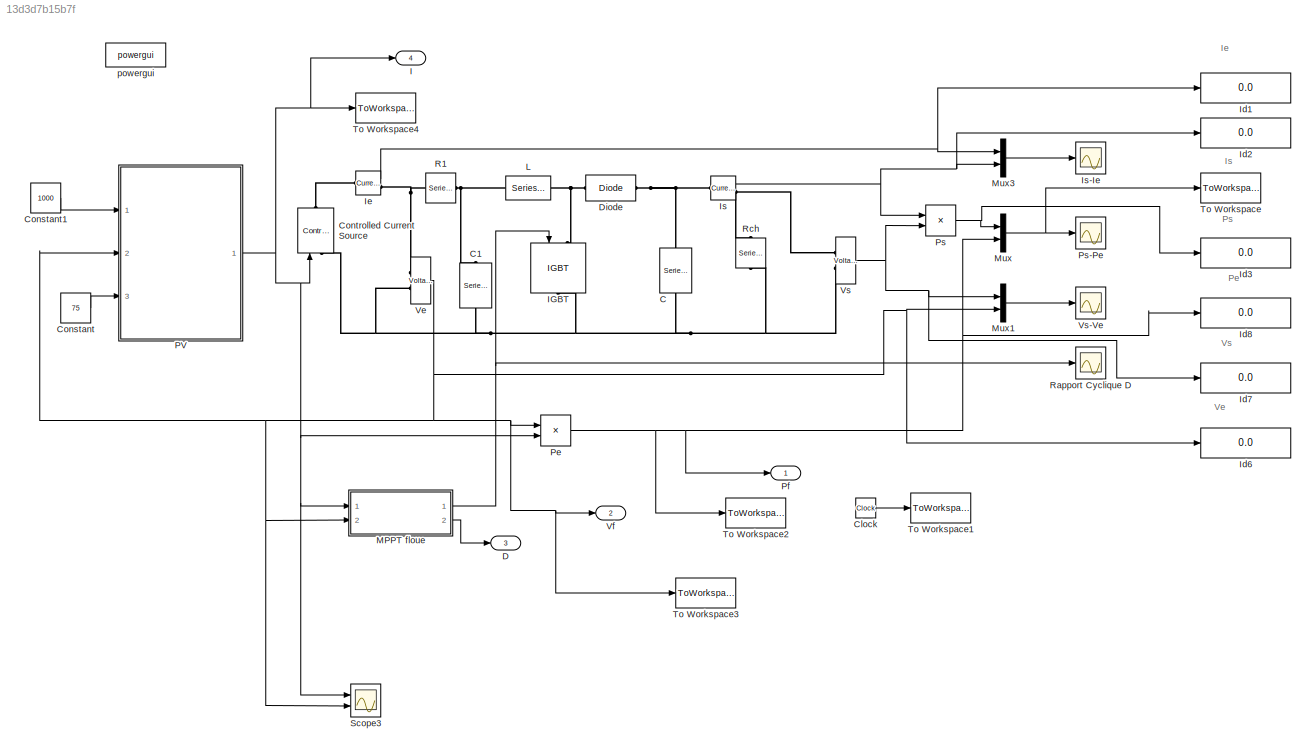
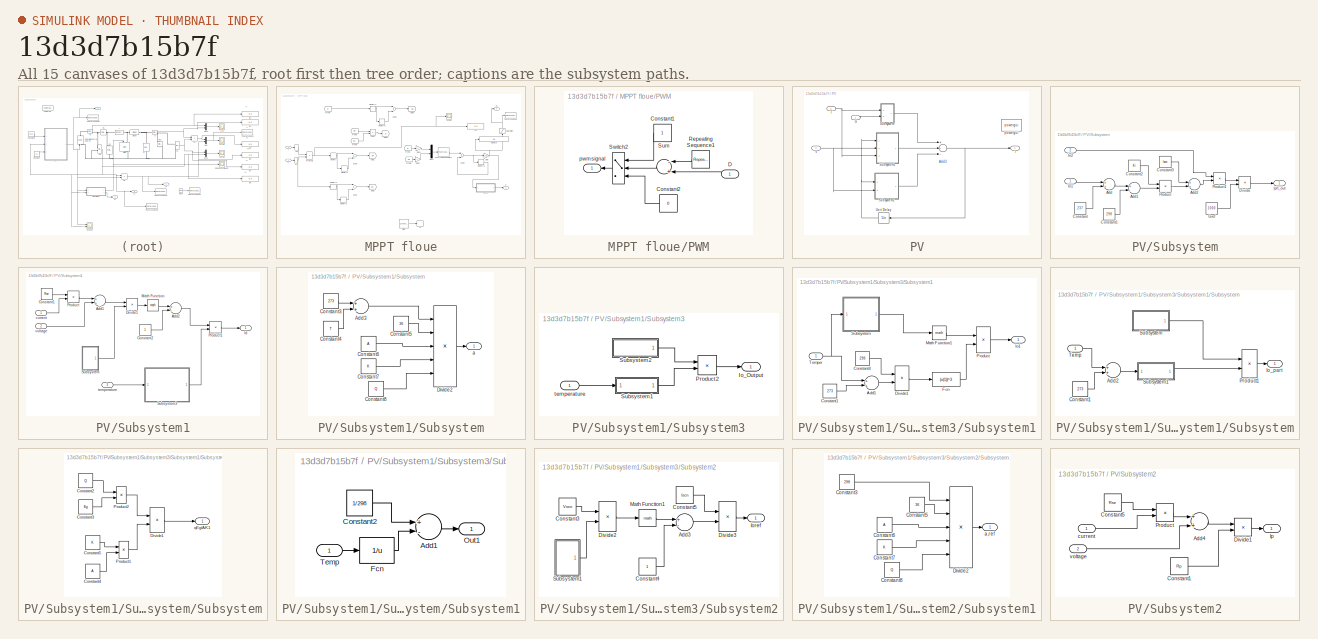
[diagram: thumbnail index - all 15 canvases of the model, root first then tree order]
MODEL slx_13d3d7b15b7f
KIND model
CONFIG AbsTol = auto
CONFIG FixedStep = auto
CONFIG MaxStep = auto
CONFIG MinStep = auto
CONFIG RelTol = 1e-3
CONFIG SampleTimeConstraint = Unconstrained
CONFIG Solver = VariableStepAuto
CONFIG SolverMode = Auto
CONFIG SolverName = VariableStepAuto
CONFIG StartTime = 0.0
CONFIG StopTime = 40
BLOCK [Reference] C  REF=powerlib/Elements/Series RLC Branch
  Ports = [0, 0, 0, 0, 0, 1, 1]
  SourceBlock = powerlib/Elements/Series RLC Branch
  SourceType = Series RLC Branch
BLOCK [Reference] C1  REF=powerlib/Elements/Series RLC Branch
  Ports = [0, 0, 0, 0, 0, 1, 1]
  SourceBlock = powerlib/Elements/Series RLC Branch
  SourceType = Series RLC Branch
BLOCK [Clock] Clock
BLOCK [Constant] Constant
  Value = 75
BLOCK [Constant] Constant1
  Value = 1000
BLOCK [Reference] Controlled Current Source  REF=powerlib/Electrical
Sources/Controlled Current Source
  Ports = [1, 0, 0, 0, 0, 1, 1]
  SourceBlock = powerlib/Electrical\nSources/Controlled Current Source
  SourceType = Controlled Current Source
BLOCK [Outport] D
  IconDisplay = Port number
  Port = 3
BLOCK [Reference] Diode  REF=powerlib/Power
Electronics/Diode
  AttributesFormatString = \n
  Ports = [0, 0, 0, 0, 0, 1, 1]
  SourceBlock = powerlib/Power\nElectronics/Diode
  SourceType = Diode
BLOCK [Outport] I  
  IconDisplay = Port number
  Port = 4
BLOCK [Reference] IGBT  REF=powerlib/Power
Electronics/IGBT
  Ports = [1, 0, 0, 0, 0, 1, 1]
  SourceBlock = powerlib/Power\nElectronics/IGBT
  SourceType = IGBT
BLOCK [Display] Id1
  Decimation = 1
  Ports = [1]
BLOCK [Display] Id2
  Decimation = 1
  Ports = [1]
BLOCK [Display] Id3
  Decimation = 1
  Ports = [1]
BLOCK [Display] Id6
  Decimation = 1
  Ports = [1]
BLOCK [Display] Id7
  Decimation = 1
  Ports = [1]
BLOCK [Display] Id8
  Decimation = 1
  Ports = [1]
BLOCK [Reference] Ie  REF=powerlib/Measurements/Current Measurement
  AttributesFormatString = \n
  Ports = [0, 1, 0, 0, 0, 1, 1]
  SourceBlock = powerlib/Measurements/Current Measurement
  SourceType = Current Measurement
  Tag = PoWeRsYsTeMmEaSuReMeNt
BLOCK [Reference] Is  REF=powerlib/Measurements/Current Measurement
  AttributesFormatString = \n
  Ports = [0, 1, 0, 0, 0, 1, 1]
  SourceBlock = powerlib/Measurements/Current Measurement
  SourceType = Current Measurement
  Tag = PoWeRsYsTeMmEaSuReMeNt
BLOCK [Scope] Is-Ie
  Ports = [1]
  ScopeSpecificationString = Simulink.scopes.TimeScopeBlockCfg('CurrentConfiguration', extmgr.ConfigurationSet(extmgr.Configuration('Core','General UI',true,'FigureColor',[1 1 1]),extmgr.Configuration('Core','Source UI',true),extmgr.Configuration('Sources','WiredSimulink',true,'DataLoggingVariableName','ScopeData2'),extmgr.Configuration('Visuals','Time Domain',true,'SerializedDisplays',{struct('MinYLimReal','-1491.4334','MaxY...<+1714ch>
BLOCK [Reference] L  REF=powerlib/Elements/Series RLC Branch
  Ports = [0, 0, 0, 0, 0, 1, 1]
  SourceBlock = powerlib/Elements/Series RLC Branch
  SourceType = Series RLC Branch
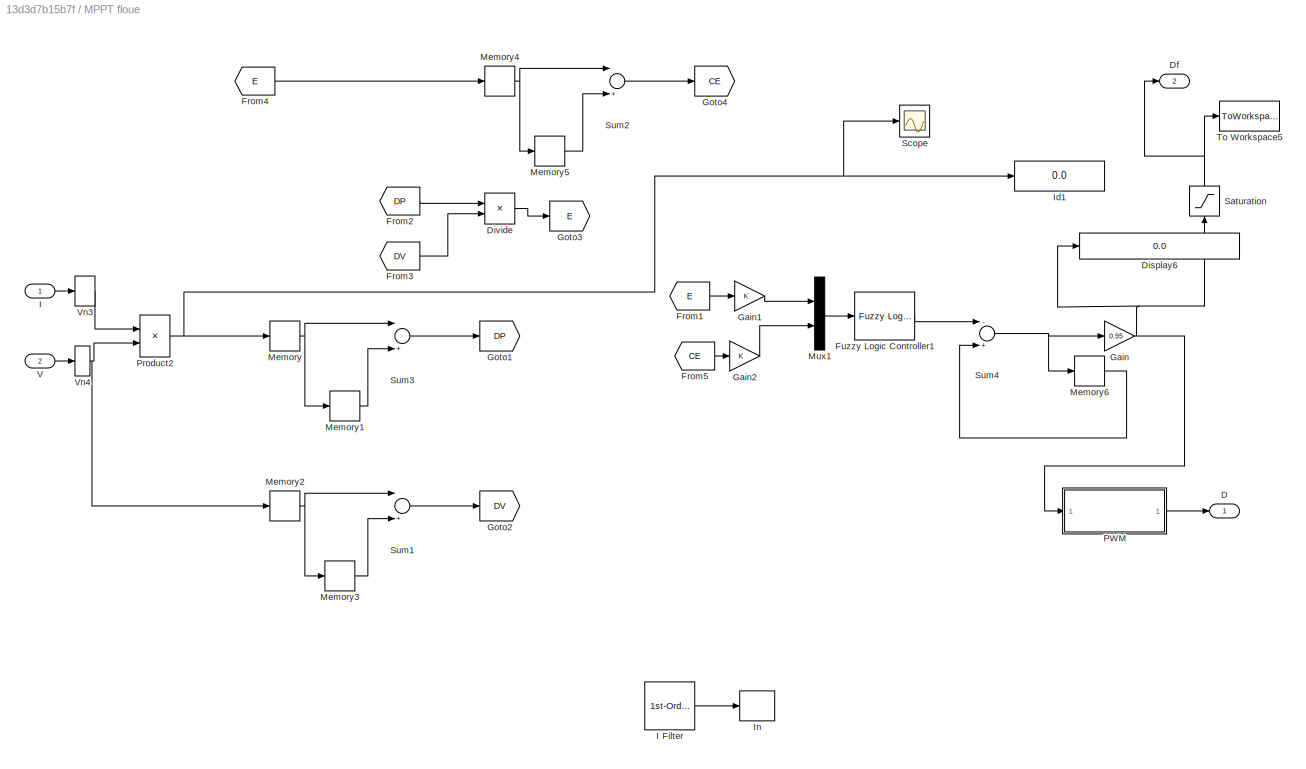
BLOCK [SubSystem] MPPT floue
  Ports = [2, 2]
  RequestExecContextInheritance = off
  Variant = off
BLOCK [Outport] MPPT floue/D
  IconDisplay = Port number
BLOCK [Outport] MPPT floue/Df
  IconDisplay = Port number
  Port = 2
BLOCK [Display] MPPT floue/Display6
  Decimation = 1
  Format = long
  Ports = [1]
BLOCK [Product] MPPT floue/Divide
  InputSameDT = off
  Inputs = */
  OutDataTypeStr = Inherit: Inherit via internal rule
  Ports = [2, 1]
  RndMeth = Floor
  SaturateOnIntegerOverflow = off
BLOCK [From] MPPT floue/From1
  GotoTag = E
BLOCK [From] MPPT floue/From2
  GotoTag = DP
BLOCK [From] MPPT floue/From3
  GotoTag = DV
BLOCK [From] MPPT floue/From4
  GotoTag = E
BLOCK [From] MPPT floue/From5
  GotoTag = CE
BLOCK [Reference] MPPT floue/Fuzzy Logic Controller1  REF=fuzblock/Fuzzy Logic   (lib defined in mdl_858b3b3e7478)
Controller
  Ports = [1, 1]
  SourceBlock = fuzblock/Fuzzy Logic \nController
  SourceType = FIS
BLOCK [Gain] MPPT floue/Gain
  Gain = 0.95
  OutDataTypeStr = Inherit: Inherit via internal rule
  ParamDataTypeStr = Inherit: Inherit via internal rule
  SaturateOnIntegerOverflow = off
BLOCK [Gain] MPPT floue/Gain1
  OutDataTypeStr = Inherit: Inherit via internal rule
  ParamDataTypeStr = Inherit: Inherit via internal rule
  SaturateOnIntegerOverflow = off
BLOCK [Gain] MPPT floue/Gain2
  OutDataTypeStr = Inherit: Inherit via internal rule
  ParamDataTypeStr = Inherit: Inherit via internal rule
  SaturateOnIntegerOverflow = off
BLOCK [Goto] MPPT floue/Goto1
  GotoTag = DP
BLOCK [Goto] MPPT floue/Goto2
  GotoTag = DV
BLOCK [Goto] MPPT floue/Goto3
  GotoTag = E
BLOCK [Goto] MPPT floue/Goto4
  GotoTag = CE
BLOCK [Inport] MPPT floue/I
  IconDisplay = Port number
BLOCK [Reference] MPPT floue/I Filter  REF=powerlib_extras/Control 
Blocks/1st-Order 
Filter
  Ports = [1, 1]
  SourceBlock = powerlib_extras/Control \nBlocks/1st-Order \nFilter
  SourceType = First-Order Filter
BLOCK [Display] MPPT floue/Id1
  Decimation = 1
  Ports = [1]
BLOCK [ZeroOrderHold] MPPT floue/In
  SampleTime = 4e-4
BLOCK [Memory] MPPT floue/Memory
BLOCK [Memory] MPPT floue/Memory1
BLOCK [Memory] MPPT floue/Memory2
BLOCK [Memory] MPPT floue/Memory3
BLOCK [Memory] MPPT floue/Memory4
BLOCK [Memory] MPPT floue/Memory5
BLOCK [Memory] MPPT floue/Memory6
BLOCK [Mux] MPPT floue/Mux1
  DisplayOption = bar
  Inputs = 2
  Ports = [2, 1]
BLOCK [SubSystem] MPPT floue/PWM
  Ports = [1, 1]
  RequestExecContextInheritance = off
  Variant = off
BLOCK [Constant] MPPT floue/PWM/Constant1
  SampleTime = -1
BLOCK [Constant] MPPT floue/PWM/Constant2
  SampleTime = -1
  Value = 0
BLOCK [Inport] MPPT floue/PWM/D
  IconDisplay = Port number
BLOCK [Reference] MPPT floue/PWM/Repeating Sequence1  REF=simulink/Sources/Repeating
Sequence
  Ports = [0, 1]
  SourceBlock = simulink/Sources/Repeating\nSequence
  SourceType = Repeating table
BLOCK [Sum] MPPT floue/PWM/Sum
  InputSameDT = off
  Inputs = -+
  OutDataTypeStr = Inherit: Inherit via internal rule
  Ports = [2, 1]
BLOCK [Switch] MPPT floue/PWM/Switch2
  InputSameDT = off
  SaturateOnIntegerOverflow = off
BLOCK [Outport] MPPT floue/PWM/pwm signal
  IconDisplay = Port number
BLOCK [Product] MPPT floue/Product2
  InputSameDT = off
  OutDataTypeStr = Inherit: Inherit via internal rule
  Ports = [2, 1]
  RndMeth = Floor
  SaturateOnIntegerOverflow = off
BLOCK [Saturate] MPPT floue/Saturation
  InputPortMap = u0
  LowerLimit = 0
  Ports = [1, 1]
  UpperLimit = 1
BLOCK [Scope] MPPT floue/Scope
  Ports = [1]
  ScopeSpecificationString = Simulink.scopes.TimeScopeBlockCfg('CurrentConfiguration', extmgr.ConfigurationSet(extmgr.Configuration('Core','General UI',true),extmgr.Configuration('Core','Source UI',true),extmgr.Configuration('Sources','WiredSimulink',true,'DataLoggingVariableName','ScopeData7','DataLoggingSaveFormat','StructureWithTime','DataLoggingLimitDataPoints',true,'DataLoggingDecimation','1','DataLoggingDecimateData',tr...<+1660ch>
BLOCK [Sum] MPPT floue/Sum1
  InputSameDT = off
  Inputs = |+-
  OutDataTypeStr = Inherit: Inherit via internal rule
  Ports = [2, 1]
  SaturateOnIntegerOverflow = off
BLOCK [Sum] MPPT floue/Sum2
  InputSameDT = off
  Inputs = |+-
  OutDataTypeStr = Inherit: Inherit via internal rule
  Ports = [2, 1]
  SaturateOnIntegerOverflow = off
BLOCK [Sum] MPPT floue/Sum3
  InputSameDT = off
  Inputs = |+-
  OutDataTypeStr = Inherit: Inherit via internal rule
  Ports = [2, 1]
  SaturateOnIntegerOverflow = off
BLOCK [Sum] MPPT floue/Sum4
  InputSameDT = off
  Inputs = -+
  OutDataTypeStr = Inherit: Inherit via internal rule
  Ports = [2, 1]
  SaturateOnIntegerOverflow = off
BLOCK [ToWorkspace] MPPT floue/To Workspace5
  MaxDataPoints = inf
  Ports = [1]
  SampleTime = -1
  VariableName = Df
BLOCK [Inport] MPPT floue/V
  IconDisplay = Port number
  Port = 2
BLOCK [ZeroOrderHold] MPPT floue/Vn3
  SampleTime = 0.01/2
BLOCK [ZeroOrderHold] MPPT floue/Vn4
  SampleTime = 0.01/2
BLOCK [Mux] Mux
  DisplayOption = bar
  Inputs = 2
  Ports = [2, 1]
BLOCK [Mux] Mux1
  DisplayOption = bar
  Inputs = 2
  Ports = [2, 1]
BLOCK [Mux] Mux3
  DisplayOption = bar
  Inputs = 2
  Ports = [2, 1]
BLOCK [SubSystem] PV
  Ports = [3, 1]
  RequestExecContextInheritance = off
  Variant = off
BLOCK [Sum] PV/Add3
  InputSameDT = off
  Inputs = +--
  OutDataTypeStr = Inherit: Inherit via internal rule
  Ports = [3, 1]
  SaturateOnIntegerOverflow = off
BLOCK [Inport] PV/G 
  IconDisplay = Port number
BLOCK [Outport] PV/I 
  IconDisplay = Port number
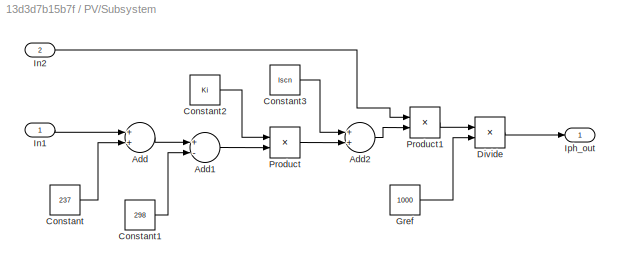
BLOCK [SubSystem] PV/Subsystem
  Ports = [2, 1]
  RequestExecContextInheritance = off
  Variant = off
BLOCK [Sum] PV/Subsystem/Add
  InputSameDT = off
  OutDataTypeStr = Inherit: Inherit via internal rule
  Ports = [2, 1]
  SaturateOnIntegerOverflow = off
BLOCK [Sum] PV/Subsystem/Add1
  InputSameDT = off
  Inputs = +-
  OutDataTypeStr = Inherit: Inherit via internal rule
  Ports = [2, 1]
  SaturateOnIntegerOverflow = off
BLOCK [Sum] PV/Subsystem/Add2
  InputSameDT = off
  OutDataTypeStr = Inherit: Inherit via internal rule
  Ports = [2, 1]
  SaturateOnIntegerOverflow = off
BLOCK [Constant] PV/Subsystem/Constant
  Value = 237
BLOCK [Constant] PV/Subsystem/Constant1
  Value = 298
BLOCK [Constant] PV/Subsystem/Constant2
  Value = Ki
BLOCK [Constant] PV/Subsystem/Constant3
  Value = Iscn
BLOCK [Product] PV/Subsystem/Divide
  InputSameDT = off
  Inputs = */
  OutDataTypeStr = Inherit: Inherit via internal rule
  Ports = [2, 1]
  RndMeth = Floor
  SaturateOnIntegerOverflow = off
BLOCK [Constant] PV/Subsystem/Gref 
  Value = 1000
BLOCK [Inport] PV/Subsystem/In1
  IconDisplay = Port number
BLOCK [Inport] PV/Subsystem/In2
  IconDisplay = Port number
  Port = 2
BLOCK [Outport] PV/Subsystem/Iph_out
  IconDisplay = Port number
BLOCK [Product] PV/Subsystem/Product
  InputSameDT = off
  OutDataTypeStr = Inherit: Inherit via internal rule
  Ports = [2, 1]
  RndMeth = Floor
  SaturateOnIntegerOverflow = off
BLOCK [Product] PV/Subsystem/Product1
  InputSameDT = off
  OutDataTypeStr = Inherit: Inherit via internal rule
  Ports = [2, 1]
  RndMeth = Floor
  SaturateOnIntegerOverflow = off
BLOCK [SubSystem] PV/Subsystem1
  Ports = [3, 1]
  RequestExecContextInheritance = off
  Variant = off
BLOCK [Sum] PV/Subsystem1/Add1
  InputSameDT = off
  OutDataTypeStr = Inherit: Inherit via internal rule
  Ports = [2, 1]
  SaturateOnIntegerOverflow = off
BLOCK [Sum] PV/Subsystem1/Add2
  InputSameDT = off
  Inputs = +-
  OutDataTypeStr = Inherit: Inherit via internal rule
  Ports = [2, 1]
  SaturateOnIntegerOverflow = off
BLOCK [Constant] PV/Subsystem1/Constant1
  Value = Rse
BLOCK [Constant] PV/Subsystem1/Constant2
BLOCK [Product] PV/Subsystem1/Divide1
  InputSameDT = off
  Inputs = */
  OutDataTypeStr = Inherit: Inherit via internal rule
  Ports = [2, 1]
  RndMeth = Floor
  SaturateOnIntegerOverflow = off
BLOCK [Outport] PV/Subsystem1/Id
  IconDisplay = Port number
BLOCK [Math] PV/Subsystem1/Math Function
  Ports = [1, 1]
BLOCK [Product] PV/Subsystem1/Product
  InputSameDT = off
  OutDataTypeStr = Inherit: Inherit via internal rule
  Ports = [2, 1]
  RndMeth = Floor
  SaturateOnIntegerOverflow = off
BLOCK [Product] PV/Subsystem1/Product1
  InputSameDT = off
  OutDataTypeStr = Inherit: Inherit via internal rule
  Ports = [2, 1]
  RndMeth = Floor
  SaturateOnIntegerOverflow = off
BLOCK [SubSystem] PV/Subsystem1/Subsystem
  Ports = [0, 1]
  RequestExecContextInheritance = off
  Variant = off
BLOCK [Sum] PV/Subsystem1/Subsystem/Add3
  InputSameDT = off
  OutDataTypeStr = Inherit: Inherit via internal rule
  Ports = [2, 1]
  SaturateOnIntegerOverflow = off
BLOCK [Constant] PV/Subsystem1/Subsystem/Constant3
  Value = 273
BLOCK [Constant] PV/Subsystem1/Subsystem/Constant4
  Value = T
BLOCK [Constant] PV/Subsystem1/Subsystem/Constant5
  Value = 36
BLOCK [Constant] PV/Subsystem1/Subsystem/Constant6
  Value = A
BLOCK [Constant] PV/Subsystem1/Subsystem/Constant7
  Value = K
BLOCK [Constant] PV/Subsystem1/Subsystem/Constant8
  Value = Q
BLOCK [Product] PV/Subsystem1/Subsystem/Divide2
  InputSameDT = off
  Inputs = ****/
  OutDataTypeStr = Inherit: Inherit via internal rule
  Ports = [5, 1]
  RndMeth = Floor
  SaturateOnIntegerOverflow = off
BLOCK [Outport] PV/Subsystem1/Subsystem/a
  IconDisplay = Port number
BLOCK [SubSystem] PV/Subsystem1/Subsystem3
  Ports = [1, 1]
  RequestExecContextInheritance = off
  Variant = off
BLOCK [Outport] PV/Subsystem1/Subsystem3/Io_Output
  IconDisplay = Port number
BLOCK [Product] PV/Subsystem1/Subsystem3/Product2
  InputSameDT = off
  OutDataTypeStr = Inherit: Inherit via internal rule
  Ports = [2, 1]
  RndMeth = Floor
  SaturateOnIntegerOverflow = off
BLOCK [SubSystem] PV/Subsystem1/Subsystem3/Subsystem1
  Ports = [1, 1]
  RequestExecContextInheritance = off
  Variant = off
BLOCK [Sum] PV/Subsystem1/Subsystem3/Subsystem1/Add1
  InputSameDT = off
  OutDataTypeStr = Inherit: Inherit via internal rule
  Ports = [2, 1]
  SaturateOnIntegerOverflow = off
BLOCK [Constant] PV/Subsystem1/Subsystem3/Subsystem1/Constant1
  Value = 273
BLOCK [Constant] PV/Subsystem1/Subsystem3/Subsystem1/Constant4
  Value = 298
BLOCK [Product] PV/Subsystem1/Subsystem3/Subsystem1/Divide1
  InputSameDT = off
  Inputs = */
  OutDataTypeStr = Inherit: Inherit via internal rule
  Ports = [2, 1]
  RndMeth = Floor
  SaturateOnIntegerOverflow = off
BLOCK [Fcn] PV/Subsystem1/Subsystem3/Subsystem1/Fcn
  Expr = (u(1))^3
BLOCK [Outport] PV/Subsystem1/Subsystem3/Subsystem1/Io1
  IconDisplay = Port number
BLOCK [Math] PV/Subsystem1/Subsystem3/Subsystem1/Math Function1
  Ports = [1, 1]
BLOCK [Product] PV/Subsystem1/Subsystem3/Subsystem1/Product
  InputSameDT = off
  OutDataTypeStr = Inherit: Inherit via internal rule
  Ports = [2, 1]
  RndMeth = Floor
  SaturateOnIntegerOverflow = off
BLOCK [SubSystem] PV/Subsystem1/Subsystem3/Subsystem1/Subsystem
  Ports = [1, 1]
  RequestExecContextInheritance = off
  Variant = off
BLOCK [Sum] PV/Subsystem1/Subsystem3/Subsystem1/Subsystem/Add2
  InputSameDT = off
  OutDataTypeStr = Inherit: Inherit via internal rule
  Ports = [2, 1]
  SaturateOnIntegerOverflow = off
BLOCK [Constant] PV/Subsystem1/Subsystem3/Subsystem1/Subsystem/Constant1
  Value = 273
BLOCK [Outport] PV/Subsystem1/Subsystem3/Subsystem1/Subsystem/Io_part
  IconDisplay = Port number
BLOCK [Product] PV/Subsystem1/Subsystem3/Subsystem1/Subsystem/Product1
  InputSameDT = off
  OutDataTypeStr = Inherit: Inherit via internal rule
  Ports = [2, 1]
  RndMeth = Floor
  SaturateOnIntegerOverflow = off
BLOCK [SubSystem] PV/Subsystem1/Subsystem3/Subsystem1/Subsystem/Subsystem
  Ports = [0, 1]
  RequestExecContextInheritance = off
  Variant = off
BLOCK [Constant] PV/Subsystem1/Subsystem3/Subsystem1/Subsystem/Subsystem/Constant2
  Value = Q
BLOCK [Constant] PV/Subsystem1/Subsystem3/Subsystem1/Subsystem/Subsystem/Constant3
  Value = Eg
BLOCK [Constant] PV/Subsystem1/Subsystem3/Subsystem1/Subsystem/Subsystem/Constant4
  Value = A
BLOCK [Constant] PV/Subsystem1/Subsystem3/Subsystem1/Subsystem/Subsystem/Constant5
  Value = K
BLOCK [Product] PV/Subsystem1/Subsystem3/Subsystem1/Subsystem/Subsystem/Divide1
  InputSameDT = off
  Inputs = */
  OutDataTypeStr = Inherit: Inherit via internal rule
  Ports = [2, 1]
  RndMeth = Floor
  SaturateOnIntegerOverflow = off
BLOCK [Product] PV/Subsystem1/Subsystem3/Subsystem1/Subsystem/Subsystem/Product1
  InputSameDT = off
  OutDataTypeStr = Inherit: Inherit via internal rule
  Ports = [2, 1]
  RndMeth = Floor
  SaturateOnIntegerOverflow = off
BLOCK [Product] PV/Subsystem1/Subsystem3/Subsystem1/Subsystem/Subsystem/Product2
  InputSameDT = off
  OutDataTypeStr = Inherit: Inherit via internal rule
  Ports = [2, 1]
  RndMeth = Floor
  SaturateOnIntegerOverflow = off
BLOCK [Outport] PV/Subsystem1/Subsystem3/Subsystem1/Subsystem/Subsystem/qEg//AK1
  IconDisplay = Port number
BLOCK [SubSystem] PV/Subsystem1/Subsystem3/Subsystem1/Subsystem/Subsystem1
  Ports = [1, 1]
  RequestExecContextInheritance = off
  Variant = off
BLOCK [Sum] PV/Subsystem1/Subsystem3/Subsystem1/Subsystem/Subsystem1/Add1
  InputSameDT = off
  Inputs = +-
  OutDataTypeStr = Inherit: Inherit via internal rule
  Ports = [2, 1]
  SaturateOnIntegerOverflow = off
BLOCK [Constant] PV/Subsystem1/Subsystem3/Subsystem1/Subsystem/Subsystem1/Constant2
  Value = 1/298
BLOCK [Fcn] PV/Subsystem1/Subsystem3/Subsystem1/Subsystem/Subsystem1/Fcn
  Expr = 1/u
BLOCK [Outport] PV/Subsystem1/Subsystem3/Subsystem1/Subsystem/Subsystem1/Out1
  IconDisplay = Port number
BLOCK [Inport] PV/Subsystem1/Subsystem3/Subsystem1/Subsystem/Subsystem1/Temp
  IconDisplay = Port number
BLOCK [Inport] PV/Subsystem1/Subsystem3/Subsystem1/Subsystem/Temp
  IconDisplay = Port number
BLOCK [Inport] PV/Subsystem1/Subsystem3/Subsystem1/Temper
  IconDisplay = Port number
BLOCK [SubSystem] PV/Subsystem1/Subsystem3/Subsystem2
  Ports = [0, 1]
  RequestExecContextInheritance = off
  Variant = off
BLOCK [Sum] PV/Subsystem1/Subsystem3/Subsystem2/Add3
  InputSameDT = off
  Inputs = +-
  OutDataTypeStr = Inherit: Inherit via internal rule
  Ports = [2, 1]
  SaturateOnIntegerOverflow = off
BLOCK [Constant] PV/Subsystem1/Subsystem3/Subsystem2/Constant3
  Value = Vocn
BLOCK [Constant] PV/Subsystem1/Subsystem3/Subsystem2/Constant4
BLOCK [Constant] PV/Subsystem1/Subsystem3/Subsystem2/Constant5
  Value = Iscn
BLOCK [Product] PV/Subsystem1/Subsystem3/Subsystem2/Divide2
  InputSameDT = off
  Inputs = */
  OutDataTypeStr = Inherit: Inherit via internal rule
  Ports = [2, 1]
  RndMeth = Floor
  SaturateOnIntegerOverflow = off
BLOCK [Product] PV/Subsystem1/Subsystem3/Subsystem2/Divide3
  InputSameDT = off
  Inputs = */
  OutDataTypeStr = Inherit: Inherit via internal rule
  Ports = [2, 1]
  RndMeth = Floor
  SaturateOnIntegerOverflow = off
BLOCK [Outport] PV/Subsystem1/Subsystem3/Subsystem2/Ioref
  IconDisplay = Port number
BLOCK [Math] PV/Subsystem1/Subsystem3/Subsystem2/Math Function1
  Ports = [1, 1]
BLOCK [SubSystem] PV/Subsystem1/Subsystem3/Subsystem2/Subsystem1
  Ports = [0, 1]
  RequestExecContextInheritance = off
  Variant = off
BLOCK [Constant] PV/Subsystem1/Subsystem3/Subsystem2/Subsystem1/Constant3
  Value = 298
BLOCK [Constant] PV/Subsystem1/Subsystem3/Subsystem2/Subsystem1/Constant5
  Value = 36
BLOCK [Constant] PV/Subsystem1/Subsystem3/Subsystem2/Subsystem1/Constant6
  Value = A
BLOCK [Constant] PV/Subsystem1/Subsystem3/Subsystem2/Subsystem1/Constant7
  Value = K
BLOCK [Constant] PV/Subsystem1/Subsystem3/Subsystem2/Subsystem1/Constant8
  Value = Q
BLOCK [Product] PV/Subsystem1/Subsystem3/Subsystem2/Subsystem1/Divide2
  InputSameDT = off
  Inputs = ****/
  OutDataTypeStr = Inherit: Inherit via internal rule
  Ports = [5, 1]
  RndMeth = Floor
  SaturateOnIntegerOverflow = off
BLOCK [Outport] PV/Subsystem1/Subsystem3/Subsystem2/Subsystem1/a,ref
  IconDisplay = Port number
BLOCK [Inport] PV/Subsystem1/Subsystem3/temperature
  IconDisplay = Port number
BLOCK [Inport] PV/Subsystem1/current
  IconDisplay = Port number
BLOCK [Inport] PV/Subsystem1/temperature
  IconDisplay = Port number
  Port = 3
BLOCK [Inport] PV/Subsystem1/voltage
  IconDisplay = Port number
  Port = 2
BLOCK [SubSystem] PV/Subsystem2
  Ports = [2, 1]
  RequestExecContextInheritance = off
  Variant = off
BLOCK [Sum] PV/Subsystem2/Add4
  InputSameDT = off
  OutDataTypeStr = Inherit: Inherit via internal rule
  Ports = [2, 1]
  SaturateOnIntegerOverflow = off
BLOCK [Constant] PV/Subsystem2/Constant1
  Value = Rp
BLOCK [Constant] PV/Subsystem2/Constant5
  Value = Rse
BLOCK [Product] PV/Subsystem2/Divide1
  InputSameDT = off
  Inputs = */
  OutDataTypeStr = Inherit: Inherit via internal rule
  Ports = [2, 1]
  RndMeth = Floor
  SaturateOnIntegerOverflow = off
BLOCK [Outport] PV/Subsystem2/Ip
  IconDisplay = Port number
BLOCK [Product] PV/Subsystem2/Product
  InputSameDT = off
  OutDataTypeStr = Inherit: Inherit via internal rule
  Ports = [2, 1]
  RndMeth = Floor
  SaturateOnIntegerOverflow = off
BLOCK [Inport] PV/Subsystem2/current 
  IconDisplay = Port number
BLOCK [Inport] PV/Subsystem2/voltage
  IconDisplay = Port number
  Port = 2
BLOCK [Inport] PV/T
  IconDisplay = Port number
  Port = 3
BLOCK [UnitDelay] PV/Unit Delay
  InputProcessing = Elements as channels (sample based)
BLOCK [Inport] PV/V
  IconDisplay = Port number
  Port = 2
BLOCK [Reference] PV/powergui  REF=powerlib/powergui
  Ports = []
  Priority = 1
  SourceBlock = powerlib/powergui
  SourceType = PSB option menu block
  UserDataPersistent = on
BLOCK [Product] Pe
  InputSameDT = off
  OutDataTypeStr = Inherit: Inherit via internal rule
  Ports = [2, 1]
  SaturateOnIntegerOverflow = off
BLOCK [Outport] Pf
  IconDisplay = Port number
BLOCK [Product] Ps
  InputSameDT = off
  OutDataTypeStr = Inherit: Inherit via internal rule
  Ports = [2, 1]
  SaturateOnIntegerOverflow = off
BLOCK [Scope] Ps-Pe
  Ports = [1]
  ScopeSpecificationString = Simulink.scopes.TimeScopeBlockCfg('CurrentConfiguration', extmgr.ConfigurationSet(extmgr.Configuration('Core','General UI',true,'FigureColor',[1 1 1]),extmgr.Configuration('Core','Source UI',true),extmgr.Configuration('Sources','WiredSimulink',true,'DataLoggingVariableName','ScopeData1'),extmgr.Configuration('Visuals','Time Domain',true,'SerializedDisplays',{struct('MinYLimReal','-47462.59429','Ma...<+1705ch>
BLOCK [Reference] R1  REF=powerlib/Elements/Series RLC Branch
  Ports = [0, 0, 0, 0, 0, 1, 1]
  SourceBlock = powerlib/Elements/Series RLC Branch
  SourceType = Series RLC Branch
BLOCK [Scope] Rapport Cyclique D
  Ports = [1]
  ScopeSpecificationString = Simulink.scopes.TimeScopeBlockCfg('CurrentConfiguration', extmgr.ConfigurationSet(extmgr.Configuration('Core','General UI',true,'FigureColor',[0 0 0]),extmgr.Configuration('Core','Source UI',true),extmgr.Configuration('Sources','WiredSimulink',true,'DataLoggingVariableName','ScopeData4'),extmgr.Configuration('Visuals','Time Domain',true,'SerializedDisplays',{struct('MinYLimReal','-1.00000','MaxYLi...<+1545ch>
BLOCK [Reference] Rch  REF=powerlib/Elements/Series RLC Branch
  Ports = [0, 0, 0, 0, 0, 1, 1]
  SourceBlock = powerlib/Elements/Series RLC Branch
  SourceType = Series RLC Branch
BLOCK [Scope] Scope3
  NumInputPorts = 2
  Ports = [2]
  ScopeSpecificationString = Simulink.scopes.TimeScopeBlockCfg('CurrentConfiguration', extmgr.ConfigurationSet(extmgr.Configuration('Core','General UI',true),extmgr.Configuration('Core','Source UI',true),extmgr.Configuration('Sources','WiredSimulink',true,'DataLoggingVariableName','ScopeData4'),extmgr.Configuration('Visuals','Time Domain',true,'SerializedDisplays',{struct('MinYLimReal','-2.45977','MaxYLimReal','33.20366','YLa...<+1823ch>
BLOCK [ToWorkspace] To Workspace
  MaxDataPoints = inf
  Ports = [1]
  SampleTime = -1
  VariableName = P
BLOCK [ToWorkspace] To Workspace1
  MaxDataPoints = inf
  Ports = [1]
  SampleTime = -1
  VariableName = t
BLOCK [ToWorkspace] To Workspace2
  MaxDataPoints = inf
  Ports = [1]
  SampleTime = -1
  VariableName = Pf
BLOCK [ToWorkspace] To Workspace3
  MaxDataPoints = inf
  Ports = [1]
  SampleTime = -1
  VariableName = Vf
BLOCK [ToWorkspace] To Workspace4
  MaxDataPoints = inf
  Ports = [1]
  SampleTime = -1
  VariableName = If
BLOCK [Reference] Ve  REF=powerlib/Measurements/Voltage Measurement
  AttributesFormatString = \n
  Ports = [0, 1, 0, 0, 0, 2]
  SourceBlock = powerlib/Measurements/Voltage Measurement
  SourceType = Voltage Measurement
  Tag = PoWeRsYsTeMmEaSuReMeNt
BLOCK [Outport] Vf
  IconDisplay = Port number
  Port = 2
BLOCK [Reference] Vs  REF=powerlib/Measurements/Voltage Measurement
  AttributesFormatString = \n
  Ports = [0, 1, 0, 0, 0, 2]
  SourceBlock = powerlib/Measurements/Voltage Measurement
  SourceType = Voltage Measurement
  Tag = PoWeRsYsTeMmEaSuReMeNt
BLOCK [Scope] Vs-Ve
  Ports = [1]
  ScopeSpecificationString = Simulink.scopes.TimeScopeBlockCfg('CurrentConfiguration', extmgr.ConfigurationSet(extmgr.Configuration('Core','General UI',true,'FigureColor',[1 1 1]),extmgr.Configuration('Core','Source UI',true),extmgr.Configuration('Sources','WiredSimulink',true,'DataLoggingVariableName','ScopeData3'),extmgr.Configuration('Visuals','Time Domain',true,'SerializedDisplays',{struct('MinYLimReal','-5.64369','MaxYLi...<+1677ch>
BLOCK [Reference] powergui  REF=powerlib/powergui
  Ports = []
  SourceBlock = powerlib/powergui
  SourceType = PSB option menu block
  UserDataPersistent = on
ANNOTATION (root): Ie
ANNOTATION (root): Is
ANNOTATION (root): Pe
ANNOTATION (root): Ps
ANNOTATION (root): Ve
ANNOTATION (root): Vs
LINE Clock:1 -> To Workspace1:1
LINE Constant1:1 -> PV:1
LINE Constant:1 -> PV:3
NET Ie:1 -> Id1:1, Mux3:1
NET Is:1 -> Id2:1, Mux3:2, Ps:1
LINE MPPT floue/Divide:1 -> MPPT floue/Goto3:1
LINE MPPT floue/From1:1 -> MPPT floue/Gain1:1
LINE MPPT floue/From2:1 -> MPPT floue/Divide:1
LINE MPPT floue/From3:1 -> MPPT floue/Divide:2
LINE MPPT floue/From4:1 -> MPPT floue/Memory4:1
LINE MPPT floue/From5:1 -> MPPT floue/Gain2:1
LINE MPPT floue/Fuzzy Logic Controller1:1 -> MPPT floue/Sum4:1
LINE MPPT floue/Gain1:1 -> MPPT floue/Mux1:1
LINE MPPT floue/Gain2:1 -> MPPT floue/Mux1:2
NET MPPT floue/Gain:1 -> MPPT floue/Display6:1, MPPT floue/PWM:1, MPPT floue/Saturation:1
LINE MPPT floue/I Filter:1 -> MPPT floue/In:1
LINE MPPT floue/I:1 -> MPPT floue/Vn3:1
LINE MPPT floue/Memory1:1 -> MPPT floue/Sum3:2
NET MPPT floue/Memory2:1 -> MPPT floue/Memory3:1, MPPT floue/Sum1:1
LINE MPPT floue/Memory3:1 -> MPPT floue/Sum1:2
NET MPPT floue/Memory4:1 -> MPPT floue/Memory5:1, MPPT floue/Sum2:1
LINE MPPT floue/Memory5:1 -> MPPT floue/Sum2:2
LINE MPPT floue/Memory6:1 -> MPPT floue/Sum4:2
NET MPPT floue/Memory:1 -> MPPT floue/Memory1:1, MPPT floue/Sum3:1
LINE MPPT floue/Mux1:1 -> MPPT floue/Fuzzy Logic Controller1:1
LINE MPPT floue/PWM/Constant1:1 -> MPPT floue/PWM/Switch2:1
LINE MPPT floue/PWM/Constant2:1 -> MPPT floue/PWM/Switch2:3
LINE MPPT floue/PWM/D:1 -> MPPT floue/PWM/Sum:2
LINE MPPT floue/PWM/Repeating Sequence1:1 -> MPPT floue/PWM/Sum:1
LINE MPPT floue/PWM/Sum:1 -> MPPT floue/PWM/Switch2:2
LINE MPPT floue/PWM/Switch2:1 -> MPPT floue/PWM/pwm signal:1
LINE MPPT floue/PWM:1 -> MPPT floue/D:1
NET MPPT floue/Product2:1 -> MPPT floue/Id1:1, MPPT floue/Memory:1, MPPT floue/Scope:1
NET MPPT floue/Saturation:1 -> MPPT floue/Df:1, MPPT floue/To Workspace5:1
LINE MPPT floue/Sum1:1 -> MPPT floue/Goto2:1
LINE MPPT floue/Sum2:1 -> MPPT floue/Goto4:1
LINE MPPT floue/Sum3:1 -> MPPT floue/Goto1:1
NET MPPT floue/Sum4:1 -> MPPT floue/Gain:1, MPPT floue/Memory6:1
LINE MPPT floue/V:1 -> MPPT floue/Vn4:1
LINE MPPT floue/Vn3:1 -> MPPT floue/Product2:1
NET MPPT floue/Vn4:1 -> MPPT floue/Memory2:1, MPPT floue/Product2:2
NET MPPT floue:1 -> IGBT:1, Rapport Cyclique D:1
LINE MPPT floue:2 -> D:1
LINE Mux1:1 -> Vs-Ve:1
LINE Mux3:1 -> Is-Ie:1
NET Mux:1 -> Ps-Pe:1, To Workspace:1
NET PV/Add3:1 -> PV/I :1, PV/Unit Delay:1
LINE PV/G :1 -> PV/Subsystem:2
LINE PV/Subsystem/Add1:1 -> PV/Subsystem/Product:2
LINE PV/Subsystem/Add2:1 -> PV/Subsystem/Product1:2
LINE PV/Subsystem/Add:1 -> PV/Subsystem/Add1:1
LINE PV/Subsystem/Constant1:1 -> PV/Subsystem/Add1:2
LINE PV/Subsystem/Constant2:1 -> PV/Subsystem/Product:1
LINE PV/Subsystem/Constant3:1 -> PV/Subsystem/Add2:1
LINE PV/Subsystem/Constant:1 -> PV/Subsystem/Add:2
LINE PV/Subsystem/Divide:1 -> PV/Subsystem/Iph_out:1
LINE PV/Subsystem/Gref :1 -> PV/Subsystem/Divide:2
LINE PV/Subsystem/In1:1 -> PV/Subsystem/Add:1
LINE PV/Subsystem/In2:1 -> PV/Subsystem/Product1:1
LINE PV/Subsystem/Product1:1 -> PV/Subsystem/Divide:1
LINE PV/Subsystem/Product:1 -> PV/Subsystem/Add2:2
LINE PV/Subsystem1/Add1:1 -> PV/Subsystem1/Divide1:1
LINE PV/Subsystem1/Add2:1 -> PV/Subsystem1/Product1:1
LINE PV/Subsystem1/Constant1:1 -> PV/Subsystem1/Product:1
LINE PV/Subsystem1/Constant2:1 -> PV/Subsystem1/Add2:2
LINE PV/Subsystem1/Divide1:1 -> PV/Subsystem1/Math Function:1
LINE PV/Subsystem1/Math Function:1 -> PV/Subsystem1/Add2:1
LINE PV/Subsystem1/Product1:1 -> PV/Subsystem1/Id:1
LINE PV/Subsystem1/Product:1 -> PV/Subsystem1/Add1:1
LINE PV/Subsystem1/Subsystem/Add3:1 -> PV/Subsystem1/Subsystem/Divide2:1
LINE PV/Subsystem1/Subsystem/Constant3:1 -> PV/Subsystem1/Subsystem/Add3:1
LINE PV/Subsystem1/Subsystem/Constant4:1 -> PV/Subsystem1/Subsystem/Add3:2
LINE PV/Subsystem1/Subsystem/Constant5:1 -> PV/Subsystem1/Subsystem/Divide2:2
LINE PV/Subsystem1/Subsystem/Constant6:1 -> PV/Subsystem1/Subsystem/Divide2:3
LINE PV/Subsystem1/Subsystem/Constant7:1 -> PV/Subsystem1/Subsystem/Divide2:4
LINE PV/Subsystem1/Subsystem/Constant8:1 -> PV/Subsystem1/Subsystem/Divide2:5
LINE PV/Subsystem1/Subsystem/Divide2:1 -> PV/Subsystem1/Subsystem/a:1
LINE PV/Subsystem1/Subsystem3/Product2:1 -> PV/Subsystem1/Subsystem3/Io_Output:1
LINE PV/Subsystem1/Subsystem3/Subsystem1/Add1:1 -> PV/Subsystem1/Subsystem3/Subsystem1/Divide1:2
LINE PV/Subsystem1/Subsystem3/Subsystem1/Constant1:1 -> PV/Subsystem1/Subsystem3/Subsystem1/Add1:2
LINE PV/Subsystem1/Subsystem3/Subsystem1/Constant4:1 -> PV/Subsystem1/Subsystem3/Subsystem1/Divide1:1
LINE PV/Subsystem1/Subsystem3/Subsystem1/Divide1:1 -> PV/Subsystem1/Subsystem3/Subsystem1/Fcn:1
LINE PV/Subsystem1/Subsystem3/Subsystem1/Fcn:1 -> PV/Subsystem1/Subsystem3/Subsystem1/Product:2
LINE PV/Subsystem1/Subsystem3/Subsystem1/Math Function1:1 -> PV/Subsystem1/Subsystem3/Subsystem1/Product:1
LINE PV/Subsystem1/Subsystem3/Subsystem1/Product:1 -> PV/Subsystem1/Subsystem3/Subsystem1/Io1:1
LINE PV/Subsystem1/Subsystem3/Subsystem1/Subsystem/Add2:1 -> PV/Subsystem1/Subsystem3/Subsystem1/Subsystem/Subsystem1:1
LINE PV/Subsystem1/Subsystem3/Subsystem1/Subsystem/Constant1:1 -> PV/Subsystem1/Subsystem3/Subsystem1/Subsystem/Add2:2
LINE PV/Subsystem1/Subsystem3/Subsystem1/Subsystem/Product1:1 -> PV/Subsystem1/Subsystem3/Subsystem1/Subsystem/Io_part:1
LINE PV/Subsystem1/Subsystem3/Subsystem1/Subsystem/Subsystem/Constant2:1 -> PV/Subsystem1/Subsystem3/Subsystem1/Subsystem/Subsystem/Product2:1
LINE PV/Subsystem1/Subsystem3/Subsystem1/Subsystem/Subsystem/Constant3:1 -> PV/Subsystem1/Subsystem3/Subsystem1/Subsystem/Subsystem/Product2:2
LINE PV/Subsystem1/Subsystem3/Subsystem1/Subsystem/Subsystem/Constant4:1 -> PV/Subsystem1/Subsystem3/Subsystem1/Subsystem/Subsystem/Product1:2
LINE PV/Subsystem1/Subsystem3/Subsystem1/Subsystem/Subsystem/Constant5:1 -> PV/Subsystem1/Subsystem3/Subsystem1/Subsystem/Subsystem/Product1:1
LINE PV/Subsystem1/Subsystem3/Subsystem1/Subsystem/Subsystem/Divide1:1 -> PV/Subsystem1/Subsystem3/Subsystem1/Subsystem/Subsystem/qEg//AK1:1
LINE PV/Subsystem1/Subsystem3/Subsystem1/Subsystem/Subsystem/Product1:1 -> PV/Subsystem1/Subsystem3/Subsystem1/Subsystem/Subsystem/Divide1:2
LINE PV/Subsystem1/Subsystem3/Subsystem1/Subsystem/Subsystem/Product2:1 -> PV/Subsystem1/Subsystem3/Subsystem1/Subsystem/Subsystem/Divide1:1
LINE PV/Subsystem1/Subsystem3/Subsystem1/Subsystem/Subsystem1/Add1:1 -> PV/Subsystem1/Subsystem3/Subsystem1/Subsystem/Subsystem1/Out1:1
LINE PV/Subsystem1/Subsystem3/Subsystem1/Subsystem/Subsystem1/Constant2:1 -> PV/Subsystem1/Subsystem3/Subsystem1/Subsystem/Subsystem1/Add1:1
LINE PV/Subsystem1/Subsystem3/Subsystem1/Subsystem/Subsystem1/Fcn:1 -> PV/Subsystem1/Subsystem3/Subsystem1/Subsystem/Subsystem1/Add1:2
LINE PV/Subsystem1/Subsystem3/Subsystem1/Subsystem/Subsystem1/Temp:1 -> PV/Subsystem1/Subsystem3/Subsystem1/Subsystem/Subsystem1/Fcn:1
LINE PV/Subsystem1/Subsystem3/Subsystem1/Subsystem/Subsystem1:1 -> PV/Subsystem1/Subsystem3/Subsystem1/Subsystem/Product1:2
LINE PV/Subsystem1/Subsystem3/Subsystem1/Subsystem/Subsystem:1 -> PV/Subsystem1/Subsystem3/Subsystem1/Subsystem/Product1:1
LINE PV/Subsystem1/Subsystem3/Subsystem1/Subsystem/Temp:1 -> PV/Subsystem1/Subsystem3/Subsystem1/Subsystem/Add2:1
LINE PV/Subsystem1/Subsystem3/Subsystem1/Subsystem:1 -> PV/Subsystem1/Subsystem3/Subsystem1/Math Function1:1
NET PV/Subsystem1/Subsystem3/Subsystem1/Temper:1 -> PV/Subsystem1/Subsystem3/Subsystem1/Add1:1, PV/Subsystem1/Subsystem3/Subsystem1/Subsystem:1
LINE PV/Subsystem1/Subsystem3/Subsystem1:1 -> PV/Subsystem1/Subsystem3/Product2:2
LINE PV/Subsystem1/Subsystem3/Subsystem2/Add3:1 -> PV/Subsystem1/Subsystem3/Subsystem2/Divide3:2
LINE PV/Subsystem1/Subsystem3/Subsystem2/Constant3:1 -> PV/Subsystem1/Subsystem3/Subsystem2/Divide2:1
LINE PV/Subsystem1/Subsystem3/Subsystem2/Constant4:1 -> PV/Subsystem1/Subsystem3/Subsystem2/Add3:2
LINE PV/Subsystem1/Subsystem3/Subsystem2/Constant5:1 -> PV/Subsystem1/Subsystem3/Subsystem2/Divide3:1
LINE PV/Subsystem1/Subsystem3/Subsystem2/Divide2:1 -> PV/Subsystem1/Subsystem3/Subsystem2/Math Function1:1
LINE PV/Subsystem1/Subsystem3/Subsystem2/Divide3:1 -> PV/Subsystem1/Subsystem3/Subsystem2/Ioref:1
LINE PV/Subsystem1/Subsystem3/Subsystem2/Math Function1:1 -> PV/Subsystem1/Subsystem3/Subsystem2/Add3:1
LINE PV/Subsystem1/Subsystem3/Subsystem2/Subsystem1/Constant3:1 -> PV/Subsystem1/Subsystem3/Subsystem2/Subsystem1/Divide2:1
LINE PV/Subsystem1/Subsystem3/Subsystem2/Subsystem1/Constant5:1 -> PV/Subsystem1/Subsystem3/Subsystem2/Subsystem1/Divide2:2
LINE PV/Subsystem1/Subsystem3/Subsystem2/Subsystem1/Constant6:1 -> PV/Subsystem1/Subsystem3/Subsystem2/Subsystem1/Divide2:3
LINE PV/Subsystem1/Subsystem3/Subsystem2/Subsystem1/Constant7:1 -> PV/Subsystem1/Subsystem3/Subsystem2/Subsystem1/Divide2:4
LINE PV/Subsystem1/Subsystem3/Subsystem2/Subsystem1/Constant8:1 -> PV/Subsystem1/Subsystem3/Subsystem2/Subsystem1/Divide2:5
LINE PV/Subsystem1/Subsystem3/Subsystem2/Subsystem1/Divide2:1 -> PV/Subsystem1/Subsystem3/Subsystem2/Subsystem1/a,ref:1
LINE PV/Subsystem1/Subsystem3/Subsystem2/Subsystem1:1 -> PV/Subsystem1/Subsystem3/Subsystem2/Divide2:2
LINE PV/Subsystem1/Subsystem3/Subsystem2:1 -> PV/Subsystem1/Subsystem3/Product2:1
LINE PV/Subsystem1/Subsystem3/temperature:1 -> PV/Subsystem1/Subsystem3/Subsystem1:1
LINE PV/Subsystem1/Subsystem3:1 -> PV/Subsystem1/Product1:2
LINE PV/Subsystem1/Subsystem:1 -> PV/Subsystem1/Divide1:2
LINE PV/Subsystem1/current:1 -> PV/Subsystem1/Product:2
LINE PV/Subsystem1/temperature:1 -> PV/Subsystem1/Subsystem3:1
LINE PV/Subsystem1/voltage:1 -> PV/Subsystem1/Add1:2
LINE PV/Subsystem1:1 -> PV/Add3:2
LINE PV/Subsystem2/Add4:1 -> PV/Subsystem2/Divide1:1
LINE PV/Subsystem2/Constant1:1 -> PV/Subsystem2/Divide1:2
LINE PV/Subsystem2/Constant5:1 -> PV/Subsystem2/Product:1
LINE PV/Subsystem2/Divide1:1 -> PV/Subsystem2/Ip:1
LINE PV/Subsystem2/Product:1 -> PV/Subsystem2/Add4:1
LINE PV/Subsystem2/current :1 -> PV/Subsystem2/Product:2
LINE PV/Subsystem2/voltage:1 -> PV/Subsystem2/Add4:2
LINE PV/Subsystem2:1 -> PV/Add3:3
LINE PV/Subsystem:1 -> PV/Add3:1
NET PV/T:1 -> PV/Subsystem1:3, PV/Subsystem:1
NET PV/Unit Delay:1 -> PV/Subsystem1:1, PV/Subsystem2:1
NET PV/V:1 -> PV/Subsystem1:2, PV/Subsystem2:2
NET PV:1 -> Controlled Current Source:1, I  :1, MPPT floue:1, Pe:2, Scope3:1, To Workspace4:1
NET Pe:1 -> Id8:1, Mux:2, Pf:1, To Workspace2:1
NET Ps:1 -> Id3:1, Mux:1
NET Ve:1 -> Id6:1, MPPT floue:2, Mux1:2, PV:2, Pe:1, Scope3:2, To Workspace3:1, Vf:1
NET Vs:1 -> Id7:1, Mux1:1, Ps:2
PNET net1: C1:LConn1 -- L:LConn1 -- R1:LConn1
PNET net2: C1:RConn1 -- C:RConn1 -- Controlled Current Source:LConn1 -- IGBT:RConn1 -- Rch:RConn1 -- Ve:LConn2 -- Vs:LConn2
PNET net3: C:LConn1 -- Diode:RConn1 -- Is:LConn1
PLINE Controlled Current Source:RConn1 -- Ie:LConn1
PNET net4: Diode:LConn1 -- IGBT:LConn1 -- L:RConn1
PNET net5: Ie:RConn1 -- R1:RConn1 -- Ve:LConn1
PNET net6: Is:RConn1 -- Rch:LConn1 -- Vs:LConn1
note: NET lines group one-source signal fan-out (src -> all destinations, sorted); 1:1 wires keep LINE; PNET lines group multi-terminal physical nets as a canonical sorted terminal list (undirected conserving connections); 2-terminal nets keep the pairwise PLINE form
